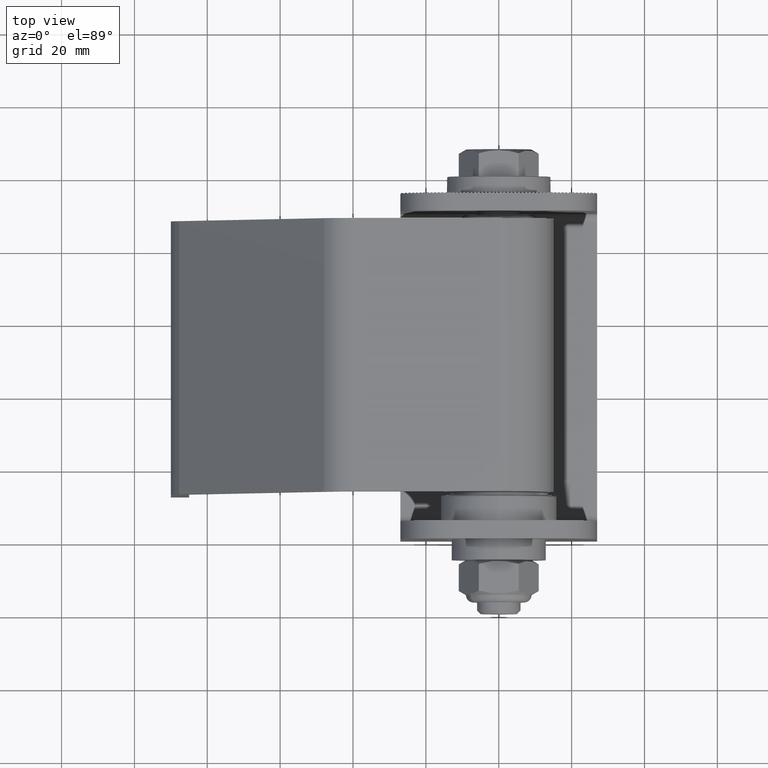
[diagram: clean part render]
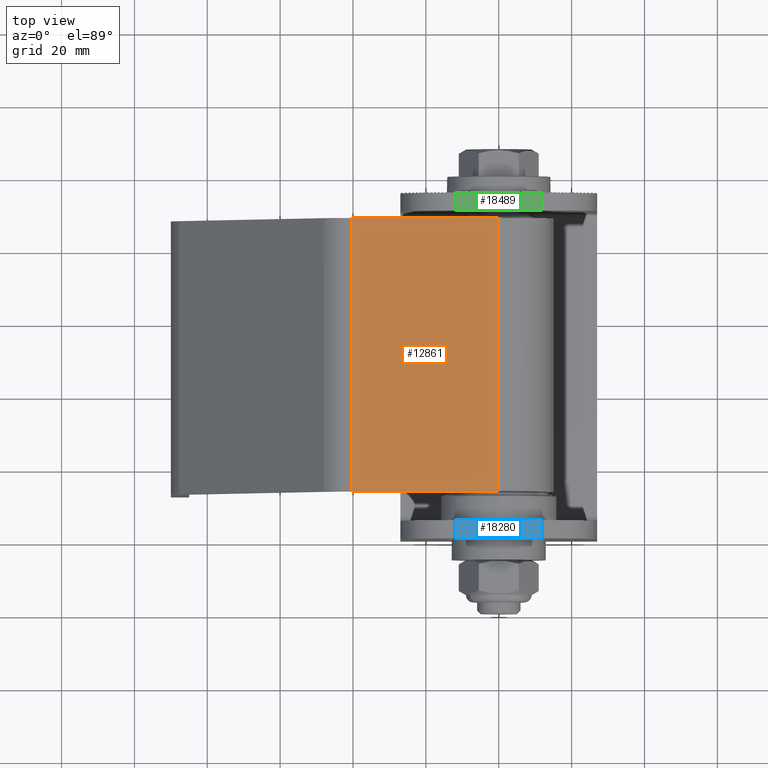
[diagram: same view with three faces highlighted in distinct colors, each labeled with its STEP entity id]
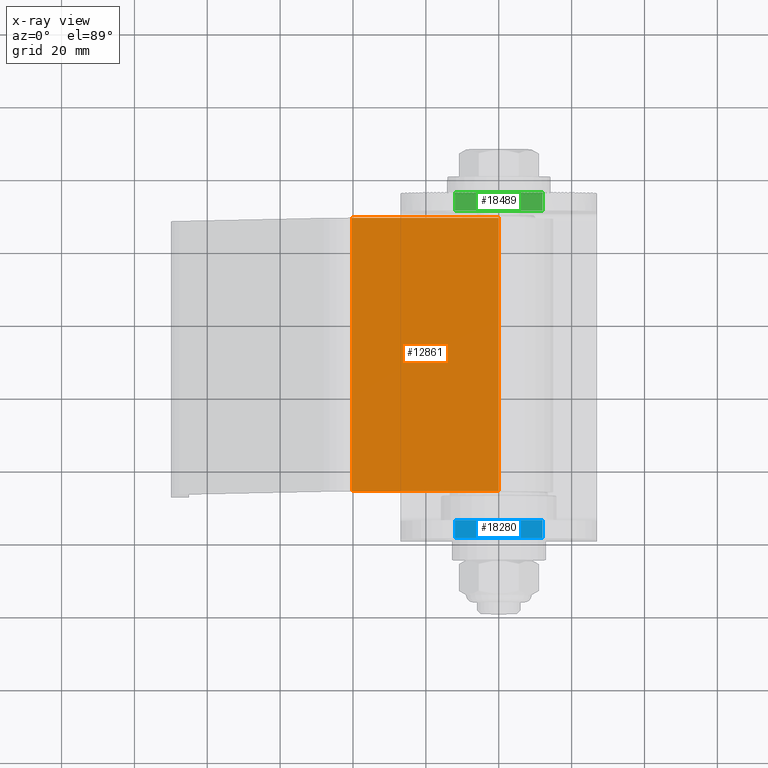
[diagram: x-ray of the same camera — body ghosted, the three highlighted faces saturated]
A machine part, top view with three faces highlighted in distinct colors.
The next image is the same camera in x-ray (body ghosted, the three faces saturated) — at least one of them is partly hidden behind the body in this view.
Their STEP definitions:

[orange] entity #12861 — the highlighted planar face has unit normal (0, -0, -1).
#707 = EDGE_CURVE ( 'NONE', #15682, #6433, #8374, .T. ) ;
#1636 = VERTEX_POINT ( 'NONE', #4722 ) ;
#2023 = CARTESIAN_POINT ( 'NONE',  ( -40.33016289040934100, 75.00000000000000000, -14.99999999999999500 ) ) ;
#3753 = VECTOR ( 'NONE', #26936, 1000.000000000000000 ) ;
#4008 = DIRECTION ( 'NONE',  ( -1.000000000000000000, 0.0000000000000000000, 1.156482317317871500E-016 ) ) ;
#4444 = EDGE_CURVE ( 'NONE', #6433, #1636, #25904, .T. ) ;
#4722 = CARTESIAN_POINT ( 'NONE',  ( -40.33016289040932600, 0.0000000000000000000, -14.99999999999999500 ) ) ;
#5138 = LINE ( 'NONE', #6422, #8404 ) ;
#5149 = AXIS2_PLACEMENT_3D ( 'NONE', #10897, #15104, #15028 ) ;
#5526 = LINE ( 'NONE', #2023, #9473 ) ;
#6087 = FACE_OUTER_BOUND ( 'NONE', #25842, .T. ) ;
#6104 = EDGE_CURVE ( 'NONE', #1636, #6414, #5526, .T. ) ;
#6414 = VERTEX_POINT ( 'NONE', #11757 ) ;
#6422 = CARTESIAN_POINT ( 'NONE',  ( -1.836970198721030400E-015, 75.00000000000000000, -15.00000000000000000 ) ) ;
#6433 = VERTEX_POINT ( 'NONE', #11465 ) ;
#7690 = ORIENTED_EDGE ( 'NONE', *, *, #4444, .T. ) ;
#8374 = LINE ( 'NONE', #14491, #3753 ) ;
#8404 = VECTOR ( 'NONE', #4008, 1000.000000000000000 ) ;
#8534 = CARTESIAN_POINT ( 'NONE',  ( -1.836970198721030400E-015, 0.0000000000000000000, -15.00000000000000000 ) ) ;
#9473 = VECTOR ( 'NONE', #16714, 1000.000000000000000 ) ;
#10897 = CARTESIAN_POINT ( 'NONE',  ( -1.836970198721030400E-015, 75.00000000000000000, -15.00000000000000000 ) ) ;
#11042 = EDGE_CURVE ( 'NONE', #15682, #6414, #5138, .T. ) ;
#11465 = CARTESIAN_POINT ( 'NONE',  ( -1.836970198721030400E-015, 0.0000000000000000000, -15.00000000000000000 ) ) ;
#11757 = CARTESIAN_POINT ( 'NONE',  ( -40.33016289040932600, 75.00000000000000000, -14.99999999999999500 ) ) ;
#12861 = ADVANCED_FACE ( 'NONE', ( #6087 ), #17309, .F. ) ;
#13699 = ORIENTED_EDGE ( 'NONE', *, *, #6104, .T. ) ;
#14491 = CARTESIAN_POINT ( 'NONE',  ( -1.836970198721030400E-015, 75.00000000000000000, -15.00000000000000000 ) ) ;
#15028 = DIRECTION ( 'NONE',  ( 1.000000000000000000, 0.0000000000000000000, -1.156482317317871500E-016 ) ) ;
#15104 = DIRECTION ( 'NONE',  ( 1.156482317317871500E-016, -0.0000000000000000000, 1.000000000000000000 ) ) ;
#15682 = VERTEX_POINT ( 'NONE', #20976 ) ;
#15828 = ORIENTED_EDGE ( 'NONE', *, *, #11042, .F. ) ;
#16488 = ORIENTED_EDGE ( 'NONE', *, *, #707, .T. ) ;
#16714 = DIRECTION ( 'NONE',  ( -0.0000000000000000000, 1.000000000000000000, -0.0000000000000000000 ) ) ;
#16784 = DIRECTION ( 'NONE',  ( -1.000000000000000000, 0.0000000000000000000, 1.156482317317871500E-016 ) ) ;
#17309 = PLANE ( 'NONE',  #5149 ) ;
#20976 = CARTESIAN_POINT ( 'NONE',  ( -1.836970198721030400E-015, 75.00000000000000000, -15.00000000000000000 ) ) ;
#22289 = VECTOR ( 'NONE', #16784, 1000.000000000000000 ) ;
#25842 = EDGE_LOOP ( 'NONE', ( #7690, #13699, #15828, #16488 ) ) ;
#25904 = LINE ( 'NONE', #8534, #22289 ) ;
#26936 = DIRECTION ( 'NONE',  ( -0.0000000000000000000, -1.000000000000000000, -0.0000000000000000000 ) ) ;

[blue] entity #18280 — the highlighted planar face has unit normal (0, 0, -1).
#1164 = VECTOR ( 'NONE', #16619, 1000.000000000000000 ) ;
#1295 = VERTEX_POINT ( 'NONE', #10822 ) ;
#1715 = CARTESIAN_POINT ( 'NONE',  ( 12.00000000000000000, 5.000000000000000000, 59.00000000000000000 ) ) ;
#1795 = LINE ( 'NONE', #12957, #7416 ) ;
#2719 = EDGE_CURVE ( 'NONE', #26422, #1295, #13206, .T. ) ;
#5134 = VERTEX_POINT ( 'NONE', #12337 ) ;
#5229 = DIRECTION ( 'NONE',  ( -1.000000000000000000, -0.0000000000000000000, -0.0000000000000000000 ) ) ;
#7416 = VECTOR ( 'NONE', #10762, 1000.000000000000000 ) ;
#8014 = EDGE_LOOP ( 'NONE', ( #10660, #12940, #22466, #16365 ) ) ;
#8776 = AXIS2_PLACEMENT_3D ( 'NONE', #13837, #15949, #18139 ) ;
#8924 = LINE ( 'NONE', #1715, #11541 ) ;
#10503 = CARTESIAN_POINT ( 'NONE',  ( 12.00000000000000000, 0.0000000000000000000, 59.00000000000000000 ) ) ;
#10660 = ORIENTED_EDGE ( 'NONE', *, *, #2719, .F. ) ;
#10762 = DIRECTION ( 'NONE',  ( -1.000000000000000000, -0.0000000000000000000, -0.0000000000000000000 ) ) ;
#10822 = CARTESIAN_POINT ( 'NONE',  ( -12.00000000000000000, 0.0000000000000000000, 59.00000000000000000 ) ) ;
#11541 = VECTOR ( 'NONE', #22889, 1000.000000000000000 ) ;
#11664 = EDGE_CURVE ( 'NONE', #16902, #1295, #14271, .T. ) ;
#12337 = CARTESIAN_POINT ( 'NONE',  ( 12.00000000000000000, 5.000000000000000000, 59.00000000000000000 ) ) ;
#12940 = ORIENTED_EDGE ( 'NONE', *, *, #15472, .T. ) ;
#12957 = CARTESIAN_POINT ( 'NONE',  ( 27.00000000000000000, 5.000000000000000000, 59.00000000000000000 ) ) ;
#13206 = LINE ( 'NONE', #15667, #23013 ) ;
#13271 = FACE_OUTER_BOUND ( 'NONE', #8014, .T. ) ;
#13837 = CARTESIAN_POINT ( 'NONE',  ( 27.00000000000000000, 5.000000000000000000, 59.00000000000000000 ) ) ;
#14271 = LINE ( 'NONE', #21004, #1164 ) ;
#15472 = EDGE_CURVE ( 'NONE', #26422, #5134, #8924, .T. ) ;
#15667 = CARTESIAN_POINT ( 'NONE',  ( 27.00000000000000000, 0.0000000000000000000, 59.00000000000000000 ) ) ;
#15949 = DIRECTION ( 'NONE',  ( 0.0000000000000000000, 0.0000000000000000000, -1.000000000000000000 ) ) ;
#16365 = ORIENTED_EDGE ( 'NONE', *, *, #11664, .T. ) ;
#16619 = DIRECTION ( 'NONE',  ( 0.0000000000000000000, -1.000000000000000000, 0.0000000000000000000 ) ) ;
#16902 = VERTEX_POINT ( 'NONE', #25062 ) ;
#17372 = EDGE_CURVE ( 'NONE', #5134, #16902, #1795, .T. ) ;
#18139 = DIRECTION ( 'NONE',  ( -1.000000000000000000, 0.0000000000000000000, -0.0000000000000000000 ) ) ;
#18280 = ADVANCED_FACE ( 'NONE', ( #13271 ), #20163, .F. ) ;
#20163 = PLANE ( 'NONE',  #8776 ) ;
#21004 = CARTESIAN_POINT ( 'NONE',  ( -12.00000000000000000, 0.0000000000000000000, 59.00000000000000000 ) ) ;
#22466 = ORIENTED_EDGE ( 'NONE', *, *, #17372, .T. ) ;
#22889 = DIRECTION ( 'NONE',  ( -0.0000000000000000000, 1.000000000000000000, -0.0000000000000000000 ) ) ;
#23013 = VECTOR ( 'NONE', #5229, 1000.000000000000000 ) ;
#25062 = CARTESIAN_POINT ( 'NONE',  ( -12.00000000000000000, 5.000000000000000000, 59.00000000000000000 ) ) ;
#26422 = VERTEX_POINT ( 'NONE', #10503 ) ;

[green] entity #18489 — the highlighted planar face has unit normal (0, 0, -1).
#37 = CARTESIAN_POINT ( 'NONE',  ( 4.261037093551302700, 96.48896290644870500, 59.00000000000000000 ) ) ;
#63 = LINE ( 'NONE', #16271, #22350 ) ;
#99 = EDGE_CURVE ( 'NONE', #4630, #11756, #480, .T. ) ;
#161 = DIRECTION ( 'NONE',  ( 0.7071067811865462400, -0.7071067811865489100, 0.0000000000000000000 ) ) ;
#230 = CARTESIAN_POINT ( 'NONE',  ( -12.00000000000000000, 90.00000000000000000, 59.00000000000000000 ) ) ;
#351 = VECTOR ( 'NONE', #16600, 1000.000000000000000 ) ;
#357 = ORIENTED_EDGE ( 'NONE', *, *, #1416, .T. ) ;
#359 = ORIENTED_EDGE ( 'NONE', *, *, #22681, .T. ) ;
#411 = CARTESIAN_POINT ( 'NONE',  ( -7.738962906448697300, 96.48896290644870500, 59.00000000000000000 ) ) ;
#480 = LINE ( 'NONE', #17736, #19509 ) ;
#549 = VERTEX_POINT ( 'NONE', #13694 ) ;
#593 = CARTESIAN_POINT ( 'NONE',  ( -8.738962906448696400, 96.48896290644870500, 59.00000000000000000 ) ) ;
#612 = EDGE_CURVE ( 'NONE', #12081, #15327, #15557, .T. ) ;
#631 = LINE ( 'NONE', #10472, #21629 ) ;
#677 = CARTESIAN_POINT ( 'NONE',  ( -4.738962906448697300, 96.48896290644870500, 59.00000000000000000 ) ) ;
#684 = VECTOR ( 'NONE', #19791, 1000.000000000000000 ) ;
#725 = VERTEX_POINT ( 'NONE', #1914 ) ;
#813 = EDGE_CURVE ( 'NONE', #18438, #16967, #10308, .T. ) ;
#847 = CARTESIAN_POINT ( 'NONE',  ( 27.00000000000000000, 95.00000000000000000, 59.00000000000000000 ) ) ;
#898 = VECTOR ( 'NONE', #21225, 1000.000000000000000 ) ;
#919 = CARTESIAN_POINT ( 'NONE',  ( -7.249999999999998200, 95.00000000000000000, 59.00000000000000000 ) ) ;
#942 = DIRECTION ( 'NONE',  ( -1.000000000000000000, -0.0000000000000000000, -0.0000000000000000000 ) ) ;
#966 = LINE ( 'NONE', #7618, #18370 ) ;
#971 = EDGE_CURVE ( 'NONE', #18438, #725, #10634, .T. ) ;
#999 = CARTESIAN_POINT ( 'NONE',  ( 1.261037093551302700, 96.48896290644870500, 59.00000000000000000 ) ) ;
#1049 = VERTEX_POINT ( 'NONE', #1629 ) ;
#1068 = ORIENTED_EDGE ( 'NONE', *, *, #14433, .F. ) ;
#1094 = VERTEX_POINT ( 'NONE', #6159 ) ;
#1146 = CARTESIAN_POINT ( 'NONE',  ( 1.750000000000000400, 95.00000000000000000, 59.00000000000000000 ) ) ;
#1202 = ORIENTED_EDGE ( 'NONE', *, *, #8955, .F. ) ;
#1222 = CARTESIAN_POINT ( 'NONE',  ( 4.738962906448697300, 96.48896290644870500, 59.00000000000000000 ) ) ;
#1337 = VECTOR ( 'NONE', #9846, 1000.000000000000000 ) ;
#1416 = EDGE_CURVE ( 'NONE', #4630, #549, #9639, .T. ) ;
#1465 = VERTEX_POINT ( 'NONE', #24448 ) ;
#1489 = ORIENTED_EDGE ( 'NONE', *, *, #8036, .T. ) ;
#1629 = CARTESIAN_POINT ( 'NONE',  ( 4.000000000000000000, 94.75000000000000000, 59.00000000000000000 ) ) ;
#1914 = CARTESIAN_POINT ( 'NONE',  ( 2.250000000000001800, 95.00000000000000000, 59.00000000000000000 ) ) ;
#1939 = DIRECTION ( 'NONE',  ( 0.7071067811865462400, 0.7071067811865489100, -0.0000000000000000000 ) ) ;
#1990 = LINE ( 'NONE', #17813, #18076 ) ;
#2008 = ORIENTED_EDGE ( 'NONE', *, *, #2384, .F. ) ;
#2013 = EDGE_CURVE ( 'NONE', #18941, #2518, #63, .T. ) ;
#2027 = CARTESIAN_POINT ( 'NONE',  ( 8.750000000000003600, 95.00000000000000000, 59.00000000000000000 ) ) ;
#2033 = ORIENTED_EDGE ( 'NONE', *, *, #20074, .T. ) ;
#2050 = ORIENTED_EDGE ( 'NONE', *, *, #24624, .T. ) ;
#2096 = DIRECTION ( 'NONE',  ( 0.7071067811865462400, 0.7071067811865489100, -0.0000000000000000000 ) ) ;
#2184 = CARTESIAN_POINT ( 'NONE',  ( 3.261037093551302700, 96.48896290644870500, 59.00000000000000000 ) ) ;
#2213 = DIRECTION ( 'NONE',  ( -1.000000000000000000, -0.0000000000000000000, -0.0000000000000000000 ) ) ;
#2216 = ORIENTED_EDGE ( 'NONE', *, *, #11464, .T. ) ;
#2242 = LINE ( 'NONE', #25726, #6536 ) ;
#2292 = VERTEX_POINT ( 'NONE', #1146 ) ;
#2300 = EDGE_CURVE ( 'NONE', #6091, #24684, #12864, .T. ) ;
#2321 = LINE ( 'NONE', #5969, #351 ) ;
#2323 = DIRECTION ( 'NONE',  ( 0.7071067811865462400, 0.7071067811865489100, -0.0000000000000000000 ) ) ;
#2368 = CARTESIAN_POINT ( 'NONE',  ( 1.000000000000000000, 94.75000000000000000, 59.00000000000000000 ) ) ;
#2383 = LINE ( 'NONE', #16880, #5673 ) ;
#2384 = EDGE_CURVE ( 'NONE', #11617, #23107, #16441, .T. ) ;
#2505 = ORIENTED_EDGE ( 'NONE', *, *, #13367, .T. ) ;
#2512 = DIRECTION ( 'NONE',  ( 0.7071067811865462400, -0.7071067811865489100, 0.0000000000000000000 ) ) ;
#2518 = VERTEX_POINT ( 'NONE', #19171 ) ;
#2526 = CARTESIAN_POINT ( 'NONE',  ( -3.249999999999998700, 95.00000000000000000, 59.00000000000000000 ) ) ;
#2614 = LINE ( 'NONE', #9764, #10494 ) ;
#2666 = CARTESIAN_POINT ( 'NONE',  ( 27.00000000000000000, 95.00000000000000000, 59.00000000000000000 ) ) ;
#2681 = ORIENTED_EDGE ( 'NONE', *, *, #24190, .F. ) ;
#2757 = LINE ( 'NONE', #411, #18839 ) ;
#2759 = CARTESIAN_POINT ( 'NONE',  ( -12.00000000000000000, 90.00000000000000000, 59.00000000000000000 ) ) ;
#2781 = CARTESIAN_POINT ( 'NONE',  ( -1.261037093551302700, 96.48896290644870500, 59.00000000000000000 ) ) ;
#2818 = VECTOR ( 'NONE', #9402, 1000.000000000000000 ) ;
#2909 = DIRECTION ( 'NONE',  ( -1.000000000000000000, -0.0000000000000000000, -0.0000000000000000000 ) ) ;
#2932 = LINE ( 'NONE', #8465, #24574 ) ;
#2955 = VERTEX_POINT ( 'NONE', #22779 ) ;
#2961 = VERTEX_POINT ( 'NONE', #20612 ) ;
#3013 = CARTESIAN_POINT ( 'NONE',  ( 27.00000000000000000, 95.00000000000000000, 59.00000000000000000 ) ) ;
#3021 = VECTOR ( 'NONE', #15182, 1000.000000000000000 ) ;
#3028 = EDGE_CURVE ( 'NONE', #11384, #26371, #17454, .T. ) ;
#3053 = CARTESIAN_POINT ( 'NONE',  ( -1.250000000000000200, 95.00000000000000000, 59.00000000000000000 ) ) ;
#3082 = ORIENTED_EDGE ( 'NONE', *, *, #3028, .F. ) ;
#3124 = DIRECTION ( 'NONE',  ( 0.7071067811865462400, -0.7071067811865489100, 0.0000000000000000000 ) ) ;
#3149 = EDGE_CURVE ( 'NONE', #24224, #3289, #1990, .T. ) ;
#3182 = ORIENTED_EDGE ( 'NONE', *, *, #20702, .F. ) ;
#3193 = CARTESIAN_POINT ( 'NONE',  ( -9.738962906448698200, 96.48896290644870500, 59.00000000000000000 ) ) ;
#3218 = CARTESIAN_POINT ( 'NONE',  ( 27.00000000000000000, 95.00000000000000000, 59.00000000000000000 ) ) ;
#3280 = LINE ( 'NONE', #24311, #7571 ) ;
#3286 = CARTESIAN_POINT ( 'NONE',  ( 11.75000000000000200, 95.00000000000000000, 59.00000000000000000 ) ) ;
#3289 = VERTEX_POINT ( 'NONE', #18842 ) ;
#3302 = VECTOR ( 'NONE', #10801, 1000.000000000000000 ) ;
#3306 = LINE ( 'NONE', #11421, #16116 ) ;
#3334 = VECTOR ( 'NONE', #13388, 1000.000000000000000 ) ;
#3360 = DIRECTION ( 'NONE',  ( 0.7071067811865462400, 0.7071067811865489100, -0.0000000000000000000 ) ) ;
#3542 = VECTOR ( 'NONE', #17429, 1000.000000000000000 ) ;
#3599 = CARTESIAN_POINT ( 'NONE',  ( -5.749999999999999100, 95.00000000000000000, 59.00000000000000000 ) ) ;
#3614 = VECTOR ( 'NONE', #4853, 1000.000000000000000 ) ;
#3679 = LINE ( 'NONE', #6133, #17137 ) ;
#3787 = DIRECTION ( 'NONE',  ( -1.000000000000000000, -0.0000000000000000000, -0.0000000000000000000 ) ) ;
#3865 = VERTEX_POINT ( 'NONE', #25877 ) ;
#3974 = VECTOR ( 'NONE', #22662, 1000.000000000000000 ) ;
#3984 = LINE ( 'NONE', #9361, #22320 ) ;
#4051 = EDGE_CURVE ( 'NONE', #1094, #4342, #5934, .T. ) ;
#4065 = VERTEX_POINT ( 'NONE', #14662 ) ;
#4127 = VERTEX_POINT ( 'NONE', #24913 ) ;
#4130 = VERTEX_POINT ( 'NONE', #14670 ) ;
#4145 = LINE ( 'NONE', #10632, #6495 ) ;
#4244 = LINE ( 'NONE', #6554, #20640 ) ;
#4308 = VERTEX_POINT ( 'NONE', #18854 ) ;
#4315 = VERTEX_POINT ( 'NONE', #2368 ) ;
#4342 = VERTEX_POINT ( 'NONE', #16830 ) ;
#4442 = CARTESIAN_POINT ( 'NONE',  ( 27.00000000000000000, 95.00000000000000000, 59.00000000000000000 ) ) ;
#4456 = EDGE_CURVE ( 'NONE', #23477, #549, #5601, .T. ) ;
#4606 = EDGE_CURVE ( 'NONE', #11756, #5097, #966, .T. ) ;
#4629 = CARTESIAN_POINT ( 'NONE',  ( 7.250000000000002700, 95.00000000000000000, 59.00000000000000000 ) ) ;
#4630 = VERTEX_POINT ( 'NONE', #13657 ) ;
#4631 = LINE ( 'NONE', #22219, #16130 ) ;
#4765 = LINE ( 'NONE', #20022, #22444 ) ;
#4816 = ORIENTED_EDGE ( 'NONE', *, *, #21465, .T. ) ;
#4838 = VECTOR ( 'NONE', #13974, 1000.000000000000000 ) ;
#4853 = DIRECTION ( 'NONE',  ( 0.7071067811865462400, 0.7071067811865489100, -0.0000000000000000000 ) ) ;
#4914 = ORIENTED_EDGE ( 'NONE', *, *, #3149, .F. ) ;
#5054 = ORIENTED_EDGE ( 'NONE', *, *, #4606, .F. ) ;
#5079 = DIRECTION ( 'NONE',  ( 0.7071067811865462400, 0.7071067811865489100, -0.0000000000000000000 ) ) ;
#5080 = ORIENTED_EDGE ( 'NONE', *, *, #19388, .F. ) ;
#5097 = VERTEX_POINT ( 'NONE', #16171 ) ;
#5147 = EDGE_CURVE ( 'NONE', #14837, #6146, #25545, .T. ) ;
#5195 = EDGE_CURVE ( 'NONE', #17446, #19838, #4244, .T. ) ;
#5260 = DIRECTION ( 'NONE',  ( 0.7071067811865462400, -0.7071067811865489100, 0.0000000000000000000 ) ) ;
#5267 = VECTOR ( 'NONE', #23677, 1000.000000000000000 ) ;
#5312 = CARTESIAN_POINT ( 'NONE',  ( 27.00000000000000000, 95.00000000000000000, 59.00000000000000000 ) ) ;
#5546 = VERTEX_POINT ( 'NONE', #24292 ) ;
#5562 = CARTESIAN_POINT ( 'NONE',  ( 8.738962906448696400, 96.48896290644870500, 59.00000000000000000 ) ) ;
#5601 = LINE ( 'NONE', #13385, #3614 ) ;
#5655 = CARTESIAN_POINT ( 'NONE',  ( -0.2499999999999989200, 95.00000000000000000, 59.00000000000000000 ) ) ;
#5673 = VECTOR ( 'NONE', #2096, 1000.000000000000000 ) ;
#5777 = LINE ( 'NONE', #2666, #13320 ) ;
#5862 = EDGE_CURVE ( 'NONE', #24530, #4342, #2242, .T. ) ;
#5934 = LINE ( 'NONE', #27198, #21968 ) ;
#5969 = CARTESIAN_POINT ( 'NONE',  ( -6.261037093551302700, 96.48896290644870500, 59.00000000000000000 ) ) ;
#6000 = VECTOR ( 'NONE', #8968, 1000.000000000000000 ) ;
#6032 = VECTOR ( 'NONE', #16848, 1000.000000000000000 ) ;
#6056 = VECTOR ( 'NONE', #8393, 1000.000000000000000 ) ;
#6091 = VERTEX_POINT ( 'NONE', #20483 ) ;
#6133 = CARTESIAN_POINT ( 'NONE',  ( 27.00000000000000000, 90.00000000000000000, 59.00000000000000000 ) ) ;
#6137 = ORIENTED_EDGE ( 'NONE', *, *, #5195, .F. ) ;
#6146 = VERTEX_POINT ( 'NONE', #10574 ) ;
#6159 = CARTESIAN_POINT ( 'NONE',  ( 8.000000000000000000, 94.75000000000000000, 59.00000000000000000 ) ) ;
#6163 = CARTESIAN_POINT ( 'NONE',  ( -0.7499999999999988900, 95.00000000000000000, 59.00000000000000000 ) ) ;
#6292 = LINE ( 'NONE', #22508, #10898 ) ;
#6328 = ORIENTED_EDGE ( 'NONE', *, *, #20073, .F. ) ;
#6343 = EDGE_CURVE ( 'NONE', #21953, #16184, #14700, .T. ) ;
#6375 = VECTOR ( 'NONE', #16277, 1000.000000000000000 ) ;
#6412 = CARTESIAN_POINT ( 'NONE',  ( -0.2610370935513025600, 96.48896290644870500, 59.00000000000000000 ) ) ;
#6415 = VECTOR ( 'NONE', #25471, 1000.000000000000000 ) ;
#6464 = LINE ( 'NONE', #11370, #18920 ) ;
#6495 = VECTOR ( 'NONE', #161, 1000.000000000000000 ) ;
#6517 = VECTOR ( 'NONE', #2323, 1000.000000000000000 ) ;
#6532 = EDGE_CURVE ( 'NONE', #2292, #25631, #26645, .T. ) ;
#6536 = VECTOR ( 'NONE', #2909, 1000.000000000000000 ) ;
#6538 = VECTOR ( 'NONE', #16538, 1000.000000000000000 ) ;
#6554 = CARTESIAN_POINT ( 'NONE',  ( -5.261037093551302700, 96.48896290644870500, 59.00000000000000000 ) ) ;
#6595 = EDGE_CURVE ( 'NONE', #14763, #25910, #24549, .T. ) ;
#6596 = DIRECTION ( 'NONE',  ( 0.0000000000000000000, 0.0000000000000000000, -1.000000000000000000 ) ) ;
#6626 = ORIENTED_EDGE ( 'NONE', *, *, #25271, .F. ) ;
#6695 = LINE ( 'NONE', #6412, #6032 ) ;
#6903 = ORIENTED_EDGE ( 'NONE', *, *, #15194, .F. ) ;
#6923 = CARTESIAN_POINT ( 'NONE',  ( -2.249999999999999100, 95.00000000000000000, 59.00000000000000000 ) ) ;
#6938 = EDGE_CURVE ( 'NONE', #4127, #19838, #23966, .T. ) ;
#7155 = EDGE_CURVE ( 'NONE', #10410, #1049, #8900, .T. ) ;
#7160 = DIRECTION ( 'NONE',  ( 0.7071067811865462400, -0.7071067811865489100, 0.0000000000000000000 ) ) ;
#7257 = CARTESIAN_POINT ( 'NONE',  ( -2.000000000000000000, 94.75000000000000000, 59.00000000000000000 ) ) ;
#7330 = VERTEX_POINT ( 'NONE', #20131 ) ;
#7364 = CARTESIAN_POINT ( 'NONE',  ( 12.73896290644869600, 96.48896290644870500, 59.00000000000000000 ) ) ;
#7475 = ORIENTED_EDGE ( 'NONE', *, *, #2300, .T. ) ;
#7571 = VECTOR ( 'NONE', #16072, 1000.000000000000000 ) ;
#7580 = CARTESIAN_POINT ( 'NONE',  ( -1.749999999999998400, 95.00000000000000000, 59.00000000000000000 ) ) ;
#7618 = CARTESIAN_POINT ( 'NONE',  ( -2.261037093551302700, 96.48896290644870500, 59.00000000000000000 ) ) ;
#7770 = DIRECTION ( 'NONE',  ( 0.7071067811865462400, -0.7071067811865489100, 0.0000000000000000000 ) ) ;
#7799 = EDGE_CURVE ( 'NONE', #2955, #8044, #3280, .T. ) ;
#7801 = EDGE_CURVE ( 'NONE', #16266, #15172, #2614, .T. ) ;
#7901 = EDGE_CURVE ( 'NONE', #17577, #1465, #11143, .T. ) ;
#8004 = LINE ( 'NONE', #5562, #6375 ) ;
#8024 = DIRECTION ( 'NONE',  ( -1.000000000000000000, -0.0000000000000000000, -0.0000000000000000000 ) ) ;
#8030 = EDGE_CURVE ( 'NONE', #13151, #24602, #631, .T. ) ;
#8036 = EDGE_CURVE ( 'NONE', #10410, #17168, #2932, .T. ) ;
#8044 = VERTEX_POINT ( 'NONE', #18994 ) ;
#8159 = CARTESIAN_POINT ( 'NONE',  ( -6.000000000000000000, 94.75000000000000000, 59.00000000000000000 ) ) ;
#8167 = ORIENTED_EDGE ( 'NONE', *, *, #9716, .T. ) ;
#8179 = VECTOR ( 'NONE', #3787, 1000.000000000000000 ) ;
#8289 = ORIENTED_EDGE ( 'NONE', *, *, #8030, .T. ) ;
#8314 = CARTESIAN_POINT ( 'NONE',  ( -10.25000000000000200, 95.00000000000000000, 59.00000000000000000 ) ) ;
#8330 = ORIENTED_EDGE ( 'NONE', *, *, #18094, .F. ) ;
#8393 = DIRECTION ( 'NONE',  ( -1.000000000000000000, -0.0000000000000000000, -0.0000000000000000000 ) ) ;
#8418 = DIRECTION ( 'NONE',  ( 0.7071067811865462400, -0.7071067811865489100, 0.0000000000000000000 ) ) ;
#8457 = LINE ( 'NONE', #24404, #4838 ) ;
#8465 = CARTESIAN_POINT ( 'NONE',  ( 27.00000000000000000, 95.00000000000000000, 59.00000000000000000 ) ) ;
#8502 = CARTESIAN_POINT ( 'NONE',  ( -7.261037093551303600, 96.48896290644870500, 59.00000000000000000 ) ) ;
#8625 = CARTESIAN_POINT ( 'NONE',  ( 27.00000000000000000, 95.00000000000000000, 59.00000000000000000 ) ) ;
#8792 = CARTESIAN_POINT ( 'NONE',  ( 27.00000000000000000, 95.00000000000000000, 59.00000000000000000 ) ) ;
#8838 = LINE ( 'NONE', #23203, #19008 ) ;
#8841 = EDGE_CURVE ( 'NONE', #22349, #14634, #18323, .T. ) ;
#8900 = LINE ( 'NONE', #21247, #3302 ) ;
#8955 = EDGE_CURVE ( 'NONE', #22839, #17446, #12768, .T. ) ;
#8968 = DIRECTION ( 'NONE',  ( 0.7071067811865462400, -0.7071067811865489100, 0.0000000000000000000 ) ) ;
#8971 = CARTESIAN_POINT ( 'NONE',  ( 7.738962906448697300, 96.48896290644870500, 59.00000000000000000 ) ) ;
#9198 = ORIENTED_EDGE ( 'NONE', *, *, #5862, .T. ) ;
#9267 = LINE ( 'NONE', #18930, #15836 ) ;
#9277 = LINE ( 'NONE', #8971, #3021 ) ;
#9278 = EDGE_CURVE ( 'NONE', #3289, #15017, #25834, .T. ) ;
#9306 = CARTESIAN_POINT ( 'NONE',  ( 3.750000000000001300, 95.00000000000000000, 59.00000000000000000 ) ) ;
#9352 = DIRECTION ( 'NONE',  ( 0.7071067811865462400, 0.7071067811865489100, -0.0000000000000000000 ) ) ;
#9361 = CARTESIAN_POINT ( 'NONE',  ( 27.00000000000000000, 95.00000000000000000, 59.00000000000000000 ) ) ;
#9402 = DIRECTION ( 'NONE',  ( 0.7071067811865462400, 0.7071067811865489100, -0.0000000000000000000 ) ) ;
#9558 = DIRECTION ( 'NONE',  ( -1.000000000000000000, -0.0000000000000000000, -0.0000000000000000000 ) ) ;
#9589 = ORIENTED_EDGE ( 'NONE', *, *, #19702, .F. ) ;
#9639 = LINE ( 'NONE', #14173, #14541 ) ;
#9716 = EDGE_CURVE ( 'NONE', #13021, #25910, #8457, .T. ) ;
#9752 = VECTOR ( 'NONE', #16862, 1000.000000000000000 ) ;
#9764 = CARTESIAN_POINT ( 'NONE',  ( 10.73896290644869800, 96.48896290644870500, 59.00000000000000000 ) ) ;
#9826 = CARTESIAN_POINT ( 'NONE',  ( 5.750000000000001800, 95.00000000000000000, 59.00000000000000000 ) ) ;
#9846 = DIRECTION ( 'NONE',  ( 0.7071067811865462400, -0.7071067811865489100, 0.0000000000000000000 ) ) ;
#9854 = CARTESIAN_POINT ( 'NONE',  ( 6.250000000000003600, 95.00000000000000000, 59.00000000000000000 ) ) ;
#9950 = ORIENTED_EDGE ( 'NONE', *, *, #5147, .T. ) ;
#9997 = DIRECTION ( 'NONE',  ( 0.7071067811865462400, -0.7071067811865489100, 0.0000000000000000000 ) ) ;
#10066 = VERTEX_POINT ( 'NONE', #18049 ) ;
#10083 = EDGE_CURVE ( 'NONE', #25664, #17868, #25499, .T. ) ;
#10117 = DIRECTION ( 'NONE',  ( -1.000000000000000000, -0.0000000000000000000, -0.0000000000000000000 ) ) ;
#10308 = LINE ( 'NONE', #999, #15213 ) ;
#10354 = CARTESIAN_POINT ( 'NONE',  ( 7.261037093551303600, 96.48896290644870500, 59.00000000000000000 ) ) ;
#10410 = VERTEX_POINT ( 'NONE', #9306 ) ;
#10472 = CARTESIAN_POINT ( 'NONE',  ( 27.00000000000000000, 95.00000000000000000, 59.00000000000000000 ) ) ;
#10494 = VECTOR ( 'NONE', #20204, 1000.000000000000000 ) ;
#10499 = LINE ( 'NONE', #15627, #5267 ) ;
#10574 = CARTESIAN_POINT ( 'NONE',  ( 10.25000000000000400, 95.00000000000000000, 59.00000000000000000 ) ) ;
#10632 = CARTESIAN_POINT ( 'NONE',  ( 6.261037093551302700, 96.48896290644870500, 59.00000000000000000 ) ) ;
#10634 = LINE ( 'NONE', #3218, #27011 ) ;
#10648 = VECTOR ( 'NONE', #13479, 1000.000000000000000 ) ;
#10740 = EDGE_CURVE ( 'NONE', #14837, #4308, #6464, .T. ) ;
#10801 = DIRECTION ( 'NONE',  ( 0.7071067811865462400, -0.7071067811865489100, 0.0000000000000000000 ) ) ;
#10819 = VERTEX_POINT ( 'NONE', #20164 ) ;
#10898 = VECTOR ( 'NONE', #9997, 1000.000000000000000 ) ;
#10938 = DIRECTION ( 'NONE',  ( 0.7071067811865462400, -0.7071067811865489100, 0.0000000000000000000 ) ) ;
#10961 = ORIENTED_EDGE ( 'NONE', *, *, #13808, .F. ) ;
#11075 = ORIENTED_EDGE ( 'NONE', *, *, #12620, .T. ) ;
#11079 = CARTESIAN_POINT ( 'NONE',  ( -4.261037093551302700, 96.48896290644870500, 59.00000000000000000 ) ) ;
#11143 = LINE ( 'NONE', #12318, #18031 ) ;
#11172 = CARTESIAN_POINT ( 'NONE',  ( -7.749999999999998200, 95.00000000000000000, 59.00000000000000000 ) ) ;
#11250 = CARTESIAN_POINT ( 'NONE',  ( 0.7500000000000017800, 95.00000000000000000, 59.00000000000000000 ) ) ;
#11341 = CARTESIAN_POINT ( 'NONE',  ( 12.00000000000000000, 90.00000000000000000, 59.00000000000000000 ) ) ;
#11370 = CARTESIAN_POINT ( 'NONE',  ( 9.261037093551301800, 96.48896290644870500, 59.00000000000000000 ) ) ;
#11384 = VERTEX_POINT ( 'NONE', #6923 ) ;
#11391 = VECTOR ( 'NONE', #19329, 1000.000000000000000 ) ;
#11421 = CARTESIAN_POINT ( 'NONE',  ( 27.00000000000000000, 95.00000000000000000, 59.00000000000000000 ) ) ;
#11464 = EDGE_CURVE ( 'NONE', #11617, #10819, #14954, .T. ) ;
#11573 = LINE ( 'NONE', #21507, #6000 ) ;
#11617 = VERTEX_POINT ( 'NONE', #22722 ) ;
#11756 = VERTEX_POINT ( 'NONE', #23012 ) ;
#11772 = DIRECTION ( 'NONE',  ( -1.000000000000000000, -0.0000000000000000000, -0.0000000000000000000 ) ) ;
#11823 = CARTESIAN_POINT ( 'NONE',  ( -8.261037093551303600, 96.48896290644870500, 59.00000000000000000 ) ) ;
#12033 = CARTESIAN_POINT ( 'NONE',  ( 9.000000000000001800, 94.75000000000000000, 59.00000000000000000 ) ) ;
#12057 = ORIENTED_EDGE ( 'NONE', *, *, #813, .F. ) ;
#12081 = VERTEX_POINT ( 'NONE', #8314 ) ;
#12136 = CARTESIAN_POINT ( 'NONE',  ( -12.73896290644869600, 96.48896290644870500, 59.00000000000000000 ) ) ;
#12209 = EDGE_CURVE ( 'NONE', #23107, #15327, #26421, .T. ) ;
#12217 = LINE ( 'NONE', #3193, #684 ) ;
#12318 = CARTESIAN_POINT ( 'NONE',  ( 27.00000000000000000, 95.00000000000000000, 59.00000000000000000 ) ) ;
#12384 = LINE ( 'NONE', #26614, #18604 ) ;
#12520 = ORIENTED_EDGE ( 'NONE', *, *, #2013, .T. ) ;
#12582 = CARTESIAN_POINT ( 'NONE',  ( 1.738962906448697600, 96.48896290644870500, 59.00000000000000000 ) ) ;
#12620 = EDGE_CURVE ( 'NONE', #4130, #15017, #18866, .T. ) ;
#12635 = ORIENTED_EDGE ( 'NONE', *, *, #25554, .F. ) ;
#12768 = LINE ( 'NONE', #593, #26175 ) ;
#12781 = ORIENTED_EDGE ( 'NONE', *, *, #10083, .F. ) ;
#12864 = LINE ( 'NONE', #14262, #3974 ) ;
#12876 = CARTESIAN_POINT ( 'NONE',  ( 27.00000000000000000, 95.00000000000000000, 59.00000000000000000 ) ) ;
#13003 = CARTESIAN_POINT ( 'NONE',  ( 9.250000000000003600, 95.00000000000000000, 59.00000000000000000 ) ) ;
#13021 = VERTEX_POINT ( 'NONE', #11250 ) ;
#13055 = ORIENTED_EDGE ( 'NONE', *, *, #612, .T. ) ;
#13060 = CARTESIAN_POINT ( 'NONE',  ( 5.000000000000000000, 94.75000000000000000, 59.00000000000000000 ) ) ;
#13140 = VECTOR ( 'NONE', #942, 1000.000000000000000 ) ;
#13151 = VERTEX_POINT ( 'NONE', #22841 ) ;
#13227 = ORIENTED_EDGE ( 'NONE', *, *, #17152, .F. ) ;
#13229 = CARTESIAN_POINT ( 'NONE',  ( -7.000000000000000000, 94.75000000000000000, 59.00000000000000000 ) ) ;
#13319 = ORIENTED_EDGE ( 'NONE', *, *, #20067, .T. ) ;
#13320 = VECTOR ( 'NONE', #17348, 1000.000000000000000 ) ;
#13367 = EDGE_CURVE ( 'NONE', #5546, #25883, #26053, .T. ) ;
#13385 = CARTESIAN_POINT ( 'NONE',  ( -3.261037093551302700, 96.48896290644870500, 59.00000000000000000 ) ) ;
#13388 = DIRECTION ( 'NONE',  ( -1.000000000000000000, -0.0000000000000000000, -0.0000000000000000000 ) ) ;
#13443 = LINE ( 'NONE', #1222, #23600 ) ;
#13479 = DIRECTION ( 'NONE',  ( -1.000000000000000000, -0.0000000000000000000, -0.0000000000000000000 ) ) ;
#13491 = VECTOR ( 'NONE', #17907, 1000.000000000000000 ) ;
#13619 = VERTEX_POINT ( 'NONE', #18341 ) ;
#13657 = CARTESIAN_POINT ( 'NONE',  ( -4.250000000000001800, 95.00000000000000000, 59.00000000000000000 ) ) ;
#13665 = VECTOR ( 'NONE', #20971, 1000.000000000000000 ) ;
#13694 = CARTESIAN_POINT ( 'NONE',  ( -4.750000000000000900, 95.00000000000000000, 59.00000000000000000 ) ) ;
#13808 = EDGE_CURVE ( 'NONE', #26371, #25846, #6695, .T. ) ;
#13842 = VERTEX_POINT ( 'NONE', #2526 ) ;
#13852 = EDGE_CURVE ( 'NONE', #4127, #24368, #2757, .T. ) ;
#13965 = CARTESIAN_POINT ( 'NONE',  ( -3.738962906448697300, 96.48896290644870500, 59.00000000000000000 ) ) ;
#13974 = DIRECTION ( 'NONE',  ( -1.000000000000000000, -0.0000000000000000000, -0.0000000000000000000 ) ) ;
#13988 = DIRECTION ( 'NONE',  ( 0.7071067811865462400, 0.7071067811865489100, -0.0000000000000000000 ) ) ;
#14060 = DIRECTION ( 'NONE',  ( 0.7071067811865462400, 0.7071067811865489100, -0.0000000000000000000 ) ) ;
#14099 = ORIENTED_EDGE ( 'NONE', *, *, #23581, .F. ) ;
#14118 = EDGE_CURVE ( 'NONE', #26607, #25664, #20778, .T. ) ;
#14173 = CARTESIAN_POINT ( 'NONE',  ( 27.00000000000000000, 95.00000000000000000, 59.00000000000000000 ) ) ;
#14262 = CARTESIAN_POINT ( 'NONE',  ( 27.00000000000000000, 95.00000000000000000, 59.00000000000000000 ) ) ;
#14285 = LINE ( 'NONE', #11823, #19831 ) ;
#14307 = LINE ( 'NONE', #2781, #14983 ) ;
#14310 = VERTEX_POINT ( 'NONE', #13060 ) ;
#14332 = ORIENTED_EDGE ( 'NONE', *, *, #16486, .T. ) ;
#14368 = CARTESIAN_POINT ( 'NONE',  ( -8.750000000000000000, 95.00000000000000000, 59.00000000000000000 ) ) ;
#14433 = EDGE_CURVE ( 'NONE', #4308, #2518, #21735, .T. ) ;
#14541 = VECTOR ( 'NONE', #20146, 1000.000000000000000 ) ;
#14581 = CARTESIAN_POINT ( 'NONE',  ( 12.00000000000000000, 94.75000000000000000, 59.00000000000000000 ) ) ;
#14617 = EDGE_CURVE ( 'NONE', #25631, #725, #2383, .T. ) ;
#14634 = VERTEX_POINT ( 'NONE', #14581 ) ;
#14662 = CARTESIAN_POINT ( 'NONE',  ( -10.00000000000000000, 94.75000000000000000, 59.00000000000000000 ) ) ;
#14670 = CARTESIAN_POINT ( 'NONE',  ( -8.250000000000001800, 95.00000000000000000, 59.00000000000000000 ) ) ;
#14700 = LINE ( 'NONE', #2759, #3542 ) ;
#14763 = VERTEX_POINT ( 'NONE', #15116 ) ;
#14788 = ORIENTED_EDGE ( 'NONE', *, *, #23782, .F. ) ;
#14797 = CARTESIAN_POINT ( 'NONE',  ( 12.00000000000000000, 95.00000000000000000, 59.00000000000000000 ) ) ;
#14837 = VERTEX_POINT ( 'NONE', #16039 ) ;
#14852 = ORIENTED_EDGE ( 'NONE', *, *, #971, .T. ) ;
#14930 = PLANE ( 'NONE',  #17387 ) ;
#14931 = DIRECTION ( 'NONE',  ( 0.7071067811865462400, -0.7071067811865489100, 0.0000000000000000000 ) ) ;
#14937 = EDGE_LOOP ( 'NONE', ( #13227, #12635, #8167, #16247, #18919, #13319, #12781, #20458, #26949, #10961, #3082, #19100, #2681, #17284, #14332, #5054, #25766, #357, #26745, #8330, #2505, #24742, #23744, #23967, #6137, #1202, #2050, #3182, #6328, #11075, #19077, #4914, #2033, #25718, #5080, #13055, #15444, #2008, #2216, #6626, #24950, #21135, #15248, #21887, #12520, #1068, #23032, #9950, #14788, #26443, #4816, #16383, #25051, #9198, #17694, #14099, #359, #19911, #22484, #8289, #6903, #20474, #17734, #20838, #20439, #7475, #9589, #25708, #1489, #20804, #12057, #14852, #16114, #24980, #27003 ) ) ;
#14954 = LINE ( 'NONE', #847, #22142 ) ;
#14981 = CARTESIAN_POINT ( 'NONE',  ( 5.261037093551302700, 96.48896290644870500, 59.00000000000000000 ) ) ;
#14983 = VECTOR ( 'NONE', #5079, 1000.000000000000000 ) ;
#15006 = CARTESIAN_POINT ( 'NONE',  ( 2.000000000000000000, 94.75000000000000000, 59.00000000000000000 ) ) ;
#15017 = VERTEX_POINT ( 'NONE', #14368 ) ;
#15066 = CARTESIAN_POINT ( 'NONE',  ( 4.250000000000003600, 95.00000000000000000, 59.00000000000000000 ) ) ;
#15076 = CARTESIAN_POINT ( 'NONE',  ( -9.750000000000001800, 95.00000000000000000, 59.00000000000000000 ) ) ;
#15116 = CARTESIAN_POINT ( 'NONE',  ( 0.0000000000000000000, 94.75000000000000000, 59.00000000000000000 ) ) ;
#15127 = EDGE_CURVE ( 'NONE', #22349, #16184, #3679, .T. ) ;
#15172 = VERTEX_POINT ( 'NONE', #13003 ) ;
#15182 = DIRECTION ( 'NONE',  ( 0.7071067811865462400, 0.7071067811865489100, -0.0000000000000000000 ) ) ;
#15194 = EDGE_CURVE ( 'NONE', #10066, #24602, #9277, .T. ) ;
#15212 = CARTESIAN_POINT ( 'NONE',  ( 27.00000000000000000, 95.00000000000000000, 59.00000000000000000 ) ) ;
#15213 = VECTOR ( 'NONE', #3124, 1000.000000000000000 ) ;
#15248 = ORIENTED_EDGE ( 'NONE', *, *, #8841, .T. ) ;
#15327 = VERTEX_POINT ( 'NONE', #25981 ) ;
#15352 = EDGE_CURVE ( 'NONE', #13842, #3865, #18085, .T. ) ;
#15353 = DIRECTION ( 'NONE',  ( 0.7071067811865462400, -0.7071067811865489100, 0.0000000000000000000 ) ) ;
#15444 = ORIENTED_EDGE ( 'NONE', *, *, #12209, .F. ) ;
#15525 = CARTESIAN_POINT ( 'NONE',  ( -1.000000000000000000, 94.75000000000000000, 59.00000000000000000 ) ) ;
#15557 = LINE ( 'NONE', #17986, #22735 ) ;
#15627 = CARTESIAN_POINT ( 'NONE',  ( 27.00000000000000000, 95.00000000000000000, 59.00000000000000000 ) ) ;
#15788 = LINE ( 'NONE', #24170, #26917 ) ;
#15791 = CARTESIAN_POINT ( 'NONE',  ( 27.00000000000000000, 95.00000000000000000, 59.00000000000000000 ) ) ;
#15836 = VECTOR ( 'NONE', #1939, 1000.000000000000000 ) ;
#15887 = VECTOR ( 'NONE', #8418, 1000.000000000000000 ) ;
#16039 = CARTESIAN_POINT ( 'NONE',  ( 10.75000000000000200, 95.00000000000000000, 59.00000000000000000 ) ) ;
#16072 = DIRECTION ( 'NONE',  ( 0.7071067811865462400, -0.7071067811865489100, 0.0000000000000000000 ) ) ;
#16114 = ORIENTED_EDGE ( 'NONE', *, *, #14617, .F. ) ;
#16116 = VECTOR ( 'NONE', #26431, 1000.000000000000000 ) ;
#16130 = VECTOR ( 'NONE', #18208, 1000.000000000000000 ) ;
#16168 = CARTESIAN_POINT ( 'NONE',  ( 3.250000000000001300, 95.00000000000000000, 59.00000000000000000 ) ) ;
#16171 = CARTESIAN_POINT ( 'NONE',  ( -3.750000000000000900, 95.00000000000000000, 59.00000000000000000 ) ) ;
#16181 = VECTOR ( 'NONE', #24112, 1000.000000000000000 ) ;
#16184 = VERTEX_POINT ( 'NONE', #230 ) ;
#16222 = DIRECTION ( 'NONE',  ( 0.7071067811865462400, 0.7071067811865489100, -0.0000000000000000000 ) ) ;
#16247 = ORIENTED_EDGE ( 'NONE', *, *, #6595, .F. ) ;
#16266 = VERTEX_POINT ( 'NONE', #12033 ) ;
#16271 = CARTESIAN_POINT ( 'NONE',  ( 27.00000000000000000, 95.00000000000000000, 59.00000000000000000 ) ) ;
#16277 = DIRECTION ( 'NONE',  ( 0.7071067811865462400, 0.7071067811865489100, -0.0000000000000000000 ) ) ;
#16383 = ORIENTED_EDGE ( 'NONE', *, *, #7801, .F. ) ;
#16441 = LINE ( 'NONE', #12136, #24636 ) ;
#16486 = EDGE_CURVE ( 'NONE', #13842, #5097, #23110, .T. ) ;
#16512 = FACE_OUTER_BOUND ( 'NONE', #14937, .T. ) ;
#16520 = VERTEX_POINT ( 'NONE', #11172 ) ;
#16538 = DIRECTION ( 'NONE',  ( -0.0000000000000000000, 1.000000000000000000, -0.0000000000000000000 ) ) ;
#16568 = VECTOR ( 'NONE', #17335, 1000.000000000000000 ) ;
#16600 = DIRECTION ( 'NONE',  ( 0.7071067811865462400, 0.7071067811865489100, -0.0000000000000000000 ) ) ;
#16636 = EDGE_CURVE ( 'NONE', #4065, #24003, #14285, .T. ) ;
#16755 = DIRECTION ( 'NONE',  ( -1.000000000000000000, -0.0000000000000000000, -0.0000000000000000000 ) ) ;
#16818 = EDGE_CURVE ( 'NONE', #17577, #10066, #17861, .T. ) ;
#16830 = CARTESIAN_POINT ( 'NONE',  ( 8.250000000000003600, 95.00000000000000000, 59.00000000000000000 ) ) ;
#16848 = DIRECTION ( 'NONE',  ( 0.7071067811865462400, 0.7071067811865489100, -0.0000000000000000000 ) ) ;
#16862 = DIRECTION ( 'NONE',  ( 0.7071067811865462400, -0.7071067811865489100, 0.0000000000000000000 ) ) ;
#16880 = CARTESIAN_POINT ( 'NONE',  ( 3.738962906448697300, 96.48896290644870500, 59.00000000000000000 ) ) ;
#16890 = CARTESIAN_POINT ( 'NONE',  ( -11.00000000000000000, 94.75000000000000000, 59.00000000000000000 ) ) ;
#16951 = CARTESIAN_POINT ( 'NONE',  ( 2.750000000000001800, 95.00000000000000000, 59.00000000000000000 ) ) ;
#16954 = VERTEX_POINT ( 'NONE', #4629 ) ;
#16967 = VERTEX_POINT ( 'NONE', #19036 ) ;
#17137 = VECTOR ( 'NONE', #16755, 1000.000000000000000 ) ;
#17152 = EDGE_CURVE ( 'NONE', #4315, #13619, #4765, .T. ) ;
#17168 = VERTEX_POINT ( 'NONE', #16168 ) ;
#17284 = ORIENTED_EDGE ( 'NONE', *, *, #15352, .F. ) ;
#17335 = DIRECTION ( 'NONE',  ( -1.000000000000000000, -0.0000000000000000000, -0.0000000000000000000 ) ) ;
#17348 = DIRECTION ( 'NONE',  ( -1.000000000000000000, -0.0000000000000000000, -0.0000000000000000000 ) ) ;
#17387 = AXIS2_PLACEMENT_3D ( 'NONE', #8792, #6596, #21248 ) ;
#17429 = DIRECTION ( 'NONE',  ( 0.0000000000000000000, -1.000000000000000000, 0.0000000000000000000 ) ) ;
#17446 = VERTEX_POINT ( 'NONE', #13229 ) ;
#17454 = LINE ( 'NONE', #13965, #1337 ) ;
#17523 = CARTESIAN_POINT ( 'NONE',  ( -12.00000000000000000, 94.75000000000000000, 59.00000000000000000 ) ) ;
#17560 = CARTESIAN_POINT ( 'NONE',  ( 27.00000000000000000, 95.00000000000000000, 59.00000000000000000 ) ) ;
#17577 = VERTEX_POINT ( 'NONE', #9826 ) ;
#17694 = ORIENTED_EDGE ( 'NONE', *, *, #4051, .F. ) ;
#17734 = ORIENTED_EDGE ( 'NONE', *, *, #7901, .T. ) ;
#17736 = CARTESIAN_POINT ( 'NONE',  ( -5.738962906448697300, 96.48896290644870500, 59.00000000000000000 ) ) ;
#17813 = CARTESIAN_POINT ( 'NONE',  ( -10.73896290644869800, 96.48896290644870500, 59.00000000000000000 ) ) ;
#17861 = LINE ( 'NONE', #37, #15887 ) ;
#17868 = VERTEX_POINT ( 'NONE', #6163 ) ;
#17907 = DIRECTION ( 'NONE',  ( -1.000000000000000000, -0.0000000000000000000, -0.0000000000000000000 ) ) ;
#17986 = CARTESIAN_POINT ( 'NONE',  ( 27.00000000000000000, 95.00000000000000000, 59.00000000000000000 ) ) ;
#18031 = VECTOR ( 'NONE', #10117, 1000.000000000000000 ) ;
#18049 = CARTESIAN_POINT ( 'NONE',  ( 6.000000000000000000, 94.75000000000000000, 59.00000000000000000 ) ) ;
#18076 = VECTOR ( 'NONE', #5260, 1000.000000000000000 ) ;
#18085 = LINE ( 'NONE', #677, #23988 ) ;
#18094 = EDGE_CURVE ( 'NONE', #5546, #23477, #23731, .T. ) ;
#18137 = EDGE_CURVE ( 'NONE', #2292, #13619, #18181, .T. ) ;
#18181 = LINE ( 'NONE', #3013, #10648 ) ;
#18208 = DIRECTION ( 'NONE',  ( 0.7071067811865462400, 0.7071067811865489100, -0.0000000000000000000 ) ) ;
#18293 = VECTOR ( 'NONE', #27218, 1000.000000000000000 ) ;
#18323 = LINE ( 'NONE', #14797, #6538 ) ;
#18341 = CARTESIAN_POINT ( 'NONE',  ( 1.250000000000001100, 95.00000000000000000, 59.00000000000000000 ) ) ;
#18370 = VECTOR ( 'NONE', #26182, 1000.000000000000000 ) ;
#18438 = VERTEX_POINT ( 'NONE', #16951 ) ;
#18489 = ADVANCED_FACE ( 'NONE', ( #16512 ), #14930, .F. ) ;
#18604 = VECTOR ( 'NONE', #3360, 1000.000000000000000 ) ;
#18666 = EDGE_CURVE ( 'NONE', #7330, #16954, #8004, .T. ) ;
#18707 = VERTEX_POINT ( 'NONE', #5655 ) ;
#18808 = DIRECTION ( 'NONE',  ( -1.000000000000000000, -0.0000000000000000000, -0.0000000000000000000 ) ) ;
#18812 = VECTOR ( 'NONE', #7770, 1000.000000000000000 ) ;
#18839 = VECTOR ( 'NONE', #19227, 1000.000000000000000 ) ;
#18842 = CARTESIAN_POINT ( 'NONE',  ( -9.000000000000001800, 94.75000000000000000, 59.00000000000000000 ) ) ;
#18854 = CARTESIAN_POINT ( 'NONE',  ( 11.00000000000000000, 94.75000000000000000, 59.00000000000000000 ) ) ;
#18866 = LINE ( 'NONE', #15212, #16568 ) ;
#18909 = DIRECTION ( 'NONE',  ( 0.7071067811865462400, -0.7071067811865489100, 0.0000000000000000000 ) ) ;
#18919 = ORIENTED_EDGE ( 'NONE', *, *, #27029, .F. ) ;
#18920 = VECTOR ( 'NONE', #7160, 1000.000000000000000 ) ;
#18930 = CARTESIAN_POINT ( 'NONE',  ( 5.738962906448697300, 96.48896290644870500, 59.00000000000000000 ) ) ;
#18941 = VERTEX_POINT ( 'NONE', #3286 ) ;
#18947 = CARTESIAN_POINT ( 'NONE',  ( -0.7389629064486974400, 96.48896290644870500, 59.00000000000000000 ) ) ;
#18994 = CARTESIAN_POINT ( 'NONE',  ( 10.00000000000000000, 94.75000000000000000, 59.00000000000000000 ) ) ;
#19008 = VECTOR ( 'NONE', #18909, 1000.000000000000000 ) ;
#19021 = LINE ( 'NONE', #17560, #13140 ) ;
#19036 = CARTESIAN_POINT ( 'NONE',  ( 3.000000000000000000, 94.75000000000000000, 59.00000000000000000 ) ) ;
#19077 = ORIENTED_EDGE ( 'NONE', *, *, #9278, .F. ) ;
#19100 = ORIENTED_EDGE ( 'NONE', *, *, #20595, .T. ) ;
#19171 = CARTESIAN_POINT ( 'NONE',  ( 11.25000000000000400, 95.00000000000000000, 59.00000000000000000 ) ) ;
#19227 = DIRECTION ( 'NONE',  ( 0.7071067811865462400, -0.7071067811865489100, 0.0000000000000000000 ) ) ;
#19329 = DIRECTION ( 'NONE',  ( 0.7071067811865462400, 0.7071067811865489100, -0.0000000000000000000 ) ) ;
#19388 = EDGE_CURVE ( 'NONE', #12081, #4065, #11573, .T. ) ;
#19509 = VECTOR ( 'NONE', #22103, 1000.000000000000000 ) ;
#19700 = DIRECTION ( 'NONE',  ( -1.000000000000000000, -0.0000000000000000000, -0.0000000000000000000 ) ) ;
#19702 = EDGE_CURVE ( 'NONE', #1049, #24684, #9267, .T. ) ;
#19734 = VECTOR ( 'NONE', #2512, 1000.000000000000000 ) ;
#19791 = DIRECTION ( 'NONE',  ( 0.7071067811865462400, -0.7071067811865489100, 0.0000000000000000000 ) ) ;
#19831 = VECTOR ( 'NONE', #9352, 1000.000000000000000 ) ;
#19838 = VERTEX_POINT ( 'NONE', #25856 ) ;
#19911 = ORIENTED_EDGE ( 'NONE', *, *, #18666, .F. ) ;
#20022 = CARTESIAN_POINT ( 'NONE',  ( 2.738962906448697300, 96.48896290644870500, 59.00000000000000000 ) ) ;
#20067 = EDGE_CURVE ( 'NONE', #18707, #17868, #3984, .T. ) ;
#20073 = EDGE_CURVE ( 'NONE', #4130, #20890, #12217, .T. ) ;
#20074 = EDGE_CURVE ( 'NONE', #24224, #24003, #21383, .T. ) ;
#20131 = CARTESIAN_POINT ( 'NONE',  ( 7.000000000000000000, 94.75000000000000000, 59.00000000000000000 ) ) ;
#20146 = DIRECTION ( 'NONE',  ( -1.000000000000000000, -0.0000000000000000000, -0.0000000000000000000 ) ) ;
#20164 = CARTESIAN_POINT ( 'NONE',  ( -11.75000000000000000, 95.00000000000000000, 59.00000000000000000 ) ) ;
#20173 = CARTESIAN_POINT ( 'NONE',  ( 0.2610370935513025600, 96.48896290644870500, 59.00000000000000000 ) ) ;
#20204 = DIRECTION ( 'NONE',  ( 0.7071067811865462400, 0.7071067811865489100, -0.0000000000000000000 ) ) ;
#20238 = EDGE_CURVE ( 'NONE', #18941, #14634, #6292, .T. ) ;
#20439 = ORIENTED_EDGE ( 'NONE', *, *, #23549, .F. ) ;
#20458 = ORIENTED_EDGE ( 'NONE', *, *, #14118, .F. ) ;
#20474 = ORIENTED_EDGE ( 'NONE', *, *, #16818, .F. ) ;
#20479 = CARTESIAN_POINT ( 'NONE',  ( 0.2500000000000015000, 95.00000000000000000, 59.00000000000000000 ) ) ;
#20483 = CARTESIAN_POINT ( 'NONE',  ( 4.750000000000003600, 95.00000000000000000, 59.00000000000000000 ) ) ;
#20539 = CARTESIAN_POINT ( 'NONE',  ( 0.7389629064486974400, 96.48896290644870500, 59.00000000000000000 ) ) ;
#20570 = VERTEX_POINT ( 'NONE', #24150 ) ;
#20595 = EDGE_CURVE ( 'NONE', #11384, #2961, #3306, .T. ) ;
#20612 = CARTESIAN_POINT ( 'NONE',  ( -2.749999999999999100, 95.00000000000000000, 59.00000000000000000 ) ) ;
#20640 = VECTOR ( 'NONE', #21105, 1000.000000000000000 ) ;
#20702 = EDGE_CURVE ( 'NONE', #20890, #16520, #2321, .T. ) ;
#20778 = LINE ( 'NONE', #26509, #18812 ) ;
#20804 = ORIENTED_EDGE ( 'NONE', *, *, #21553, .F. ) ;
#20838 = ORIENTED_EDGE ( 'NONE', *, *, #25363, .F. ) ;
#20890 = VERTEX_POINT ( 'NONE', #26099 ) ;
#20971 = DIRECTION ( 'NONE',  ( 0.7071067811865462400, -0.7071067811865489100, 0.0000000000000000000 ) ) ;
#21105 = DIRECTION ( 'NONE',  ( 0.7071067811865462400, 0.7071067811865489100, -0.0000000000000000000 ) ) ;
#21135 = ORIENTED_EDGE ( 'NONE', *, *, #15127, .F. ) ;
#21225 = DIRECTION ( 'NONE',  ( -1.000000000000000000, -0.0000000000000000000, -0.0000000000000000000 ) ) ;
#21247 = CARTESIAN_POINT ( 'NONE',  ( 2.261037093551302700, 96.48896290644870500, 59.00000000000000000 ) ) ;
#21248 = DIRECTION ( 'NONE',  ( -1.000000000000000000, 0.0000000000000000000, -0.0000000000000000000 ) ) ;
#21383 = LINE ( 'NONE', #5312, #3334 ) ;
#21465 = EDGE_CURVE ( 'NONE', #2955, #15172, #19021, .T. ) ;
#21472 = EDGE_CURVE ( 'NONE', #26607, #25846, #10499, .T. ) ;
#21507 = CARTESIAN_POINT ( 'NONE',  ( -11.73896290644869800, 96.48896290644870500, 59.00000000000000000 ) ) ;
#21541 = LINE ( 'NONE', #2184, #9752 ) ;
#21553 = EDGE_CURVE ( 'NONE', #16967, #17168, #13443, .T. ) ;
#21629 = VECTOR ( 'NONE', #2213, 1000.000000000000000 ) ;
#21735 = LINE ( 'NONE', #7364, #16181 ) ;
#21760 = VECTOR ( 'NONE', #26192, 1000.000000000000000 ) ;
#21833 = DIRECTION ( 'NONE',  ( -1.000000000000000000, -0.0000000000000000000, -0.0000000000000000000 ) ) ;
#21887 = ORIENTED_EDGE ( 'NONE', *, *, #20238, .F. ) ;
#21943 = DIRECTION ( 'NONE',  ( 0.7071067811865462400, 0.7071067811865489100, -0.0000000000000000000 ) ) ;
#21953 = VERTEX_POINT ( 'NONE', #17523 ) ;
#21968 = VECTOR ( 'NONE', #25267, 1000.000000000000000 ) ;
#21993 = CARTESIAN_POINT ( 'NONE',  ( -9.261037093551301800, 96.48896290644870500, 59.00000000000000000 ) ) ;
#22103 = DIRECTION ( 'NONE',  ( 0.7071067811865462400, -0.7071067811865489100, 0.0000000000000000000 ) ) ;
#22142 = VECTOR ( 'NONE', #21833, 1000.000000000000000 ) ;
#22219 = CARTESIAN_POINT ( 'NONE',  ( 6.738962906448697300, 96.48896290644870500, 59.00000000000000000 ) ) ;
#22320 = VECTOR ( 'NONE', #19700, 1000.000000000000000 ) ;
#22349 = VERTEX_POINT ( 'NONE', #11341 ) ;
#22350 = VECTOR ( 'NONE', #8024, 1000.000000000000000 ) ;
#22444 = VECTOR ( 'NONE', #14060, 1000.000000000000000 ) ;
#22465 = LINE ( 'NONE', #14981, #27077 ) ;
#22484 = ORIENTED_EDGE ( 'NONE', *, *, #24677, .F. ) ;
#22508 = CARTESIAN_POINT ( 'NONE',  ( 10.26103709355130400, 96.48896290644870500, 59.00000000000000000 ) ) ;
#22662 = DIRECTION ( 'NONE',  ( -1.000000000000000000, -0.0000000000000000000, -0.0000000000000000000 ) ) ;
#22681 = EDGE_CURVE ( 'NONE', #20570, #16954, #26805, .T. ) ;
#22702 = DIRECTION ( 'NONE',  ( 0.7071067811865462400, -0.7071067811865489100, 0.0000000000000000000 ) ) ;
#22722 = CARTESIAN_POINT ( 'NONE',  ( -11.25000000000000200, 95.00000000000000000, 59.00000000000000000 ) ) ;
#22735 = VECTOR ( 'NONE', #11772, 1000.000000000000000 ) ;
#22779 = CARTESIAN_POINT ( 'NONE',  ( 9.750000000000003600, 95.00000000000000000, 59.00000000000000000 ) ) ;
#22787 = CARTESIAN_POINT ( 'NONE',  ( -5.000000000000000000, 94.75000000000000000, 59.00000000000000000 ) ) ;
#22839 = VERTEX_POINT ( 'NONE', #919 ) ;
#22841 = CARTESIAN_POINT ( 'NONE',  ( 6.750000000000001800, 95.00000000000000000, 59.00000000000000000 ) ) ;
#23012 = CARTESIAN_POINT ( 'NONE',  ( -4.000000000000000000, 94.75000000000000000, 59.00000000000000000 ) ) ;
#23032 = ORIENTED_EDGE ( 'NONE', *, *, #10740, .F. ) ;
#23107 = VERTEX_POINT ( 'NONE', #16890 ) ;
#23110 = LINE ( 'NONE', #8625, #6415 ) ;
#23185 = CARTESIAN_POINT ( 'NONE',  ( -6.738962906448697300, 96.48896290644870500, 59.00000000000000000 ) ) ;
#23196 = LINE ( 'NONE', #11079, #11391 ) ;
#23203 = CARTESIAN_POINT ( 'NONE',  ( -1.738962906448697600, 96.48896290644870500, 59.00000000000000000 ) ) ;
#23477 = VERTEX_POINT ( 'NONE', #22787 ) ;
#23549 = EDGE_CURVE ( 'NONE', #6091, #14310, #21541, .T. ) ;
#23581 = EDGE_CURVE ( 'NONE', #20570, #1094, #4145, .T. ) ;
#23600 = VECTOR ( 'NONE', #13988, 1000.000000000000000 ) ;
#23660 = EDGE_CURVE ( 'NONE', #24368, #25883, #23196, .T. ) ;
#23677 = DIRECTION ( 'NONE',  ( -1.000000000000000000, -0.0000000000000000000, -0.0000000000000000000 ) ) ;
#23731 = LINE ( 'NONE', #23185, #21760 ) ;
#23744 = ORIENTED_EDGE ( 'NONE', *, *, #13852, .F. ) ;
#23782 = EDGE_CURVE ( 'NONE', #8044, #6146, #12384, .T. ) ;
#23854 = CARTESIAN_POINT ( 'NONE',  ( -9.250000000000001800, 95.00000000000000000, 59.00000000000000000 ) ) ;
#23966 = LINE ( 'NONE', #15791, #13491 ) ;
#23967 = ORIENTED_EDGE ( 'NONE', *, *, #6938, .T. ) ;
#23988 = VECTOR ( 'NONE', #15353, 1000.000000000000000 ) ;
#24003 = VERTEX_POINT ( 'NONE', #15076 ) ;
#24112 = DIRECTION ( 'NONE',  ( 0.7071067811865462400, 0.7071067811865489100, -0.0000000000000000000 ) ) ;
#24150 = CARTESIAN_POINT ( 'NONE',  ( 7.750000000000003600, 95.00000000000000000, 59.00000000000000000 ) ) ;
#24170 = CARTESIAN_POINT ( 'NONE',  ( -10.26103709355130400, 96.48896290644870500, 59.00000000000000000 ) ) ;
#24190 = EDGE_CURVE ( 'NONE', #3865, #2961, #14307, .T. ) ;
#24224 = VERTEX_POINT ( 'NONE', #23854 ) ;
#24292 = CARTESIAN_POINT ( 'NONE',  ( -5.250000000000000000, 95.00000000000000000, 59.00000000000000000 ) ) ;
#24310 = EDGE_CURVE ( 'NONE', #24530, #16266, #24485, .T. ) ;
#24311 = CARTESIAN_POINT ( 'NONE',  ( 8.261037093551303600, 96.48896290644870500, 59.00000000000000000 ) ) ;
#24368 = VERTEX_POINT ( 'NONE', #8159 ) ;
#24404 = CARTESIAN_POINT ( 'NONE',  ( 27.00000000000000000, 95.00000000000000000, 59.00000000000000000 ) ) ;
#24448 = CARTESIAN_POINT ( 'NONE',  ( 5.250000000000003600, 95.00000000000000000, 59.00000000000000000 ) ) ;
#24485 = LINE ( 'NONE', #10354, #13665 ) ;
#24530 = VERTEX_POINT ( 'NONE', #2027 ) ;
#24549 = LINE ( 'NONE', #12582, #18293 ) ;
#24574 = VECTOR ( 'NONE', #18808, 1000.000000000000000 ) ;
#24602 = VERTEX_POINT ( 'NONE', #9854 ) ;
#24624 = EDGE_CURVE ( 'NONE', #22839, #16520, #5777, .T. ) ;
#24636 = VECTOR ( 'NONE', #27039, 1000.000000000000000 ) ;
#24677 = EDGE_CURVE ( 'NONE', #13151, #7330, #22465, .T. ) ;
#24682 = CARTESIAN_POINT ( 'NONE',  ( 27.00000000000000000, 95.00000000000000000, 59.00000000000000000 ) ) ;
#24684 = VERTEX_POINT ( 'NONE', #15066 ) ;
#24742 = ORIENTED_EDGE ( 'NONE', *, *, #23660, .F. ) ;
#24913 = CARTESIAN_POINT ( 'NONE',  ( -6.250000000000000900, 95.00000000000000000, 59.00000000000000000 ) ) ;
#24950 = ORIENTED_EDGE ( 'NONE', *, *, #6343, .T. ) ;
#24980 = ORIENTED_EDGE ( 'NONE', *, *, #6532, .F. ) ;
#25051 = ORIENTED_EDGE ( 'NONE', *, *, #24310, .F. ) ;
#25267 = DIRECTION ( 'NONE',  ( 0.7071067811865462400, 0.7071067811865489100, -0.0000000000000000000 ) ) ;
#25271 = EDGE_CURVE ( 'NONE', #21953, #10819, #15788, .T. ) ;
#25291 = LINE ( 'NONE', #18947, #19734 ) ;
#25363 = EDGE_CURVE ( 'NONE', #14310, #1465, #4631, .T. ) ;
#25471 = DIRECTION ( 'NONE',  ( -1.000000000000000000, -0.0000000000000000000, -0.0000000000000000000 ) ) ;
#25499 = LINE ( 'NONE', #20539, #27126 ) ;
#25545 = LINE ( 'NONE', #24682, #8179 ) ;
#25554 = EDGE_CURVE ( 'NONE', #13021, #4315, #25291, .T. ) ;
#25631 = VERTEX_POINT ( 'NONE', #15006 ) ;
#25664 = VERTEX_POINT ( 'NONE', #15525 ) ;
#25708 = ORIENTED_EDGE ( 'NONE', *, *, #7155, .F. ) ;
#25718 = ORIENTED_EDGE ( 'NONE', *, *, #16636, .F. ) ;
#25726 = CARTESIAN_POINT ( 'NONE',  ( 27.00000000000000000, 95.00000000000000000, 59.00000000000000000 ) ) ;
#25766 = ORIENTED_EDGE ( 'NONE', *, *, #99, .F. ) ;
#25834 = LINE ( 'NONE', #8502, #6517 ) ;
#25846 = VERTEX_POINT ( 'NONE', #7580 ) ;
#25856 = CARTESIAN_POINT ( 'NONE',  ( -6.750000000000003600, 95.00000000000000000, 59.00000000000000000 ) ) ;
#25877 = CARTESIAN_POINT ( 'NONE',  ( -3.000000000000000000, 94.75000000000000000, 59.00000000000000000 ) ) ;
#25883 = VERTEX_POINT ( 'NONE', #3599 ) ;
#25910 = VERTEX_POINT ( 'NONE', #20479 ) ;
#25981 = CARTESIAN_POINT ( 'NONE',  ( -10.75000000000000000, 95.00000000000000000, 59.00000000000000000 ) ) ;
#25993 = VECTOR ( 'NONE', #22702, 1000.000000000000000 ) ;
#26053 = LINE ( 'NONE', #12876, #6056 ) ;
#26099 = CARTESIAN_POINT ( 'NONE',  ( -8.000000000000000000, 94.75000000000000000, 59.00000000000000000 ) ) ;
#26175 = VECTOR ( 'NONE', #14931, 1000.000000000000000 ) ;
#26182 = DIRECTION ( 'NONE',  ( 0.7071067811865462400, 0.7071067811865489100, -0.0000000000000000000 ) ) ;
#26192 = DIRECTION ( 'NONE',  ( 0.7071067811865462400, -0.7071067811865489100, 0.0000000000000000000 ) ) ;
#26371 = VERTEX_POINT ( 'NONE', #7257 ) ;
#26421 = LINE ( 'NONE', #21993, #2818 ) ;
#26431 = DIRECTION ( 'NONE',  ( -1.000000000000000000, -0.0000000000000000000, -0.0000000000000000000 ) ) ;
#26443 = ORIENTED_EDGE ( 'NONE', *, *, #7799, .F. ) ;
#26509 = CARTESIAN_POINT ( 'NONE',  ( -2.738962906448697300, 96.48896290644870500, 59.00000000000000000 ) ) ;
#26607 = VERTEX_POINT ( 'NONE', #3053 ) ;
#26614 = CARTESIAN_POINT ( 'NONE',  ( 11.73896290644869800, 96.48896290644870500, 59.00000000000000000 ) ) ;
#26645 = LINE ( 'NONE', #20173, #25993 ) ;
#26745 = ORIENTED_EDGE ( 'NONE', *, *, #4456, .F. ) ;
#26805 = LINE ( 'NONE', #4442, #898 ) ;
#26917 = VECTOR ( 'NONE', #21943, 1000.000000000000000 ) ;
#26949 = ORIENTED_EDGE ( 'NONE', *, *, #21472, .T. ) ;
#27003 = ORIENTED_EDGE ( 'NONE', *, *, #18137, .T. ) ;
#27011 = VECTOR ( 'NONE', #9558, 1000.000000000000000 ) ;
#27029 = EDGE_CURVE ( 'NONE', #18707, #14763, #8838, .T. ) ;
#27039 = DIRECTION ( 'NONE',  ( 0.7071067811865462400, -0.7071067811865489100, 0.0000000000000000000 ) ) ;
#27077 = VECTOR ( 'NONE', #10938, 1000.000000000000000 ) ;
#27126 = VECTOR ( 'NONE', #16222, 1000.000000000000000 ) ;
#27198 = CARTESIAN_POINT ( 'NONE',  ( 9.738962906448698200, 96.48896290644870500, 59.00000000000000000 ) ) ;
#27218 = DIRECTION ( 'NONE',  ( 0.7071067811865462400, 0.7071067811865489100, -0.0000000000000000000 ) ) ;